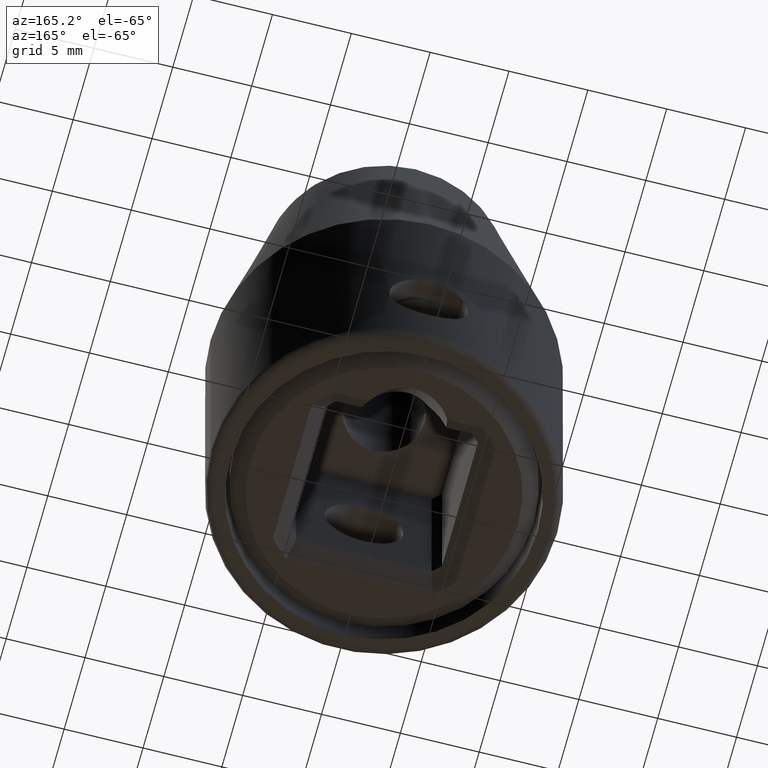
[diagram: clean part render]
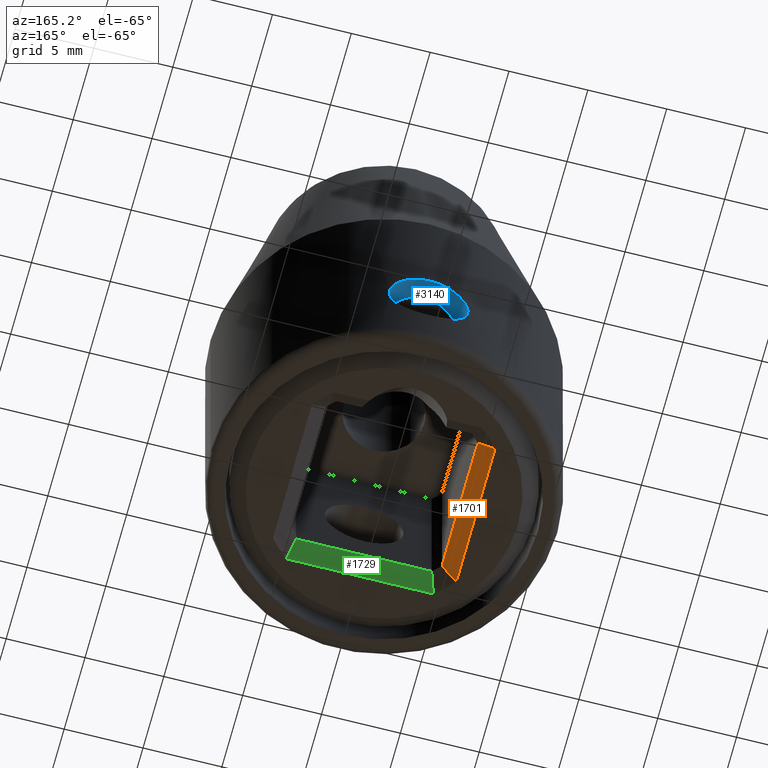
[diagram: same view with three faces highlighted in distinct colors, each labeled with its STEP entity id]
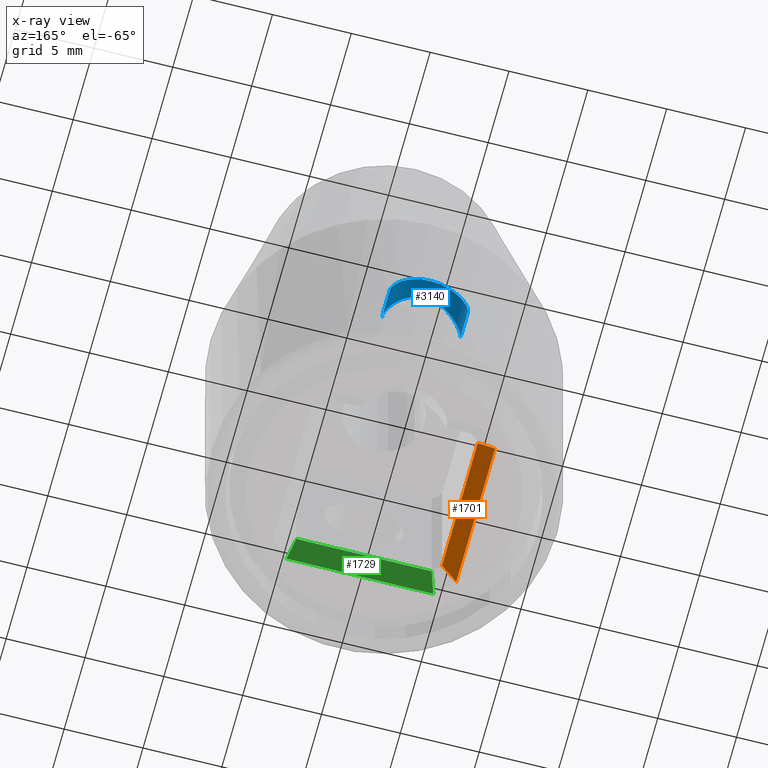
[diagram: x-ray of the same camera — body ghosted, the three highlighted faces saturated]
A machine part, auxiliary view with three faces highlighted in distinct colors.
The next image is the same camera in x-ray (body ghosted, the three faces saturated) — at least one of them is partly hidden behind the body in this view.
Their STEP definitions:

[orange] entity #1701 — the highlighted planar face has unit normal (0.7071, 0, -0.7071).
#70=DIRECTION('',(0.E0,-1.E0,0.E0));
#71=VECTOR('',#70,9.320374187767E0);
#72=CARTESIAN_POINT('',(-5.8125E0,4.660187093884E0,0.E0));
#73=LINE('',#72,#71);
#539=CARTESIAN_POINT('',(-4.812499999989E0,4.294455000342E0,1.000000000011E0));
#540=CARTESIAN_POINT('',(-4.969065537908E0,4.354154326175E0,8.434344620924E-1));
#541=CARTESIAN_POINT('',(-5.292278928942E0,4.474905876440E0,5.202210710578E-1));
#542=CARTESIAN_POINT('',(-5.635715214156E0,4.598068324618E0,1.767847858442E-1));
#543=CARTESIAN_POINT('',(-5.8125E0,4.660187093884E0,0.E0));
#545=CARTESIAN_POINT('',(-4.812499625574E0,-4.294454849542E0,1.000000379775E0));
#546=CARTESIAN_POINT('',(-4.969082591780E0,-4.354160828487E0,
8.434174135688E-1));
#547=CARTESIAN_POINT('',(-5.292314075015E0,-4.474918731365E0,
5.201859223112E-1));
#548=CARTESIAN_POINT('',(-5.635732733714E0,-4.598074480654E0,
1.767672662855E-1));
#549=CARTESIAN_POINT('',(-5.8125E0,-4.660187093884E0,0.E0));
#619=DIRECTION('',(4.359291289737E-8,-1.E0,4.421562363457E-8));
#620=VECTOR('',#619,8.588909849884E0);
#621=CARTESIAN_POINT('',(-4.812499999989E0,4.294455000342E0,1.000000000011E0));
#622=LINE('',#621,#620);
#1151=CARTESIAN_POINT('',(-5.8125E0,-4.660187093884E0,0.E0));
#1152=VERTEX_POINT('',#1151);
#1153=CARTESIAN_POINT('',(-4.8125E0,-4.294455000346E0,1.E0));
#1154=VERTEX_POINT('',#1153);
#1155=CARTESIAN_POINT('',(-5.8125E0,4.660187093884E0,0.E0));
#1156=VERTEX_POINT('',#1155);
#1157=CARTESIAN_POINT('',(-4.812499999989E0,4.294455000342E0,1.000000000011E0));
#1158=VERTEX_POINT('',#1157);
#1688=CARTESIAN_POINT('',(-5.3125E0,0.E0,5.E-1));
#1689=DIRECTION('',(7.071067811865E-1,0.E0,-7.071067811865E-1));
#1690=DIRECTION('',(7.071067811865E-1,0.E0,7.071067811865E-1));
#1691=AXIS2_PLACEMENT_3D('',#1688,#1689,#1690);
#1692=PLANE('',#1691);
#1693=ORIENTED_EDGE('',*,*,#1341,.T.);
#1695=ORIENTED_EDGE('',*,*,#1694,.F.);
#1697=ORIENTED_EDGE('',*,*,#1696,.F.);
#1698=ORIENTED_EDGE('',*,*,#1681,.T.);
#1699=EDGE_LOOP('',(#1693,#1695,#1697,#1698));
#1700=FACE_OUTER_BOUND('',#1699,.F.);
#1701=ADVANCED_FACE('',(#1700),#1692,.T.);
#544=B_SPLINE_CURVE_WITH_KNOTS('',3,(#539,#540,#541,#542,#543),.UNSPECIFIED.,
.F.,.F.,(4,1,4),(0.E0,5.E-1,1.E0),.UNSPECIFIED.);
#550=B_SPLINE_CURVE_WITH_KNOTS('',3,(#545,#546,#547,#548,#549),.UNSPECIFIED.,
.F.,.F.,(4,1,4),(0.E0,5.E-1,1.E0),.UNSPECIFIED.);
#1341=EDGE_CURVE('',#1156,#1152,#73,.T.);
#1681=EDGE_CURVE('',#1158,#1156,#544,.T.);
#1694=EDGE_CURVE('',#1154,#1152,#550,.T.);
#1696=EDGE_CURVE('',#1158,#1154,#622,.T.);

[blue] entity #3140 — the highlighted cylindrical surface (partial cylindrical patch) has radius 2.5 mm, axis along (0, -1, 0).
#2555=CARTESIAN_POINT('',(-2.5E0,-8.905756565278E0,5.5E0));
#2571=CARTESIAN_POINT('',(-8.366600265341E-1,-9.714036236292E0,
7.855843797878E0));
#2572=CARTESIAN_POINT('',(-9.376847958340E-1,-9.689328224581E0,
7.819965618586E0));
#2573=CARTESIAN_POINT('',(-1.133397866283E0,-9.632548132418E0,
7.735865600021E0));
#2574=CARTESIAN_POINT('',(-1.406088030253E0,-9.530926765064E0,
7.575040444306E0));
#2575=CARTESIAN_POINT('',(-1.652588087949E0,-9.420443379563E0,
7.384367683306E0));
#2576=CARTESIAN_POINT('',(-1.871252702804E0,-9.307723976618E0,
7.167272750353E0));
#2577=CARTESIAN_POINT('',(-2.063591217070E0,-9.197192953892E0,
6.923181029130E0));
#2578=CARTESIAN_POINT('',(-2.233878893250E0,-9.090368517965E0,
6.639582366719E0));
#2579=CARTESIAN_POINT('',(-2.377300432731E0,-8.993668832201E0,
6.306105419009E0));
#2580=CARTESIAN_POINT('',(-2.478457548605E0,-8.921589441983E0,
5.905466787454E0));
#2581=CARTESIAN_POINT('',(-2.5E0,-8.905756565278E0,5.636342810266E0));
#2582=CARTESIAN_POINT('',(-2.5E0,-8.905756565278E0,5.5E0));
#2595=CARTESIAN_POINT('',(2.5E0,-8.905756565278E0,5.5E0));
#2596=CARTESIAN_POINT('',(2.5E0,-8.905756565278E0,5.634140102606E0));
#2597=CARTESIAN_POINT('',(2.479155177628E0,-8.921073605874E0,5.899571358434E0));
#2598=CARTESIAN_POINT('',(2.380245411427E0,-8.991602544229E0,6.296997478134E0));
#2599=CARTESIAN_POINT('',(2.238682037612E0,-9.087217475872E0,6.630069219549E0));
#2600=CARTESIAN_POINT('',(2.069759839351E0,-9.193468106778E0,6.914227886264E0));
#2601=CARTESIAN_POINT('',(1.877636980040E0,-9.304251906071E0,7.160213488755E0));
#2602=CARTESIAN_POINT('',(1.657917572492E0,-9.417904721155E0,7.379820845062E0));
#2603=CARTESIAN_POINT('',(1.409974691436E0,-9.529371627076E0,7.572518300260E0));
#2604=CARTESIAN_POINT('',(1.135507472162E0,-9.631902781878E0,7.734905408500E0));
#2605=CARTESIAN_POINT('',(9.384121495530E-1,-9.689150332919E0,
7.819707304439E0));
#2606=CARTESIAN_POINT('',(8.366600265341E-1,-9.714036236292E0,
7.855843797878E0));
#2622=CARTESIAN_POINT('',(2.5E0,-8.905756565278E0,5.5E0));
#2676=CARTESIAN_POINT('',(8.366600265341E-1,-9.714036236292E0,
7.855843797878E0));
#2677=CARTESIAN_POINT('',(7.051203377959E-1,-9.725365615429E0,
7.902559118974E0));
#2678=CARTESIAN_POINT('',(4.355935715411E-1,-9.743301733085E0,
7.974038365051E0));
#2679=CARTESIAN_POINT('',(9.525434746290E-4,-9.753333692257E0,
8.012920358698E0));
#2680=CARTESIAN_POINT('',(-4.345830060582E-1,-9.743363299260E0,
7.974279425506E0));
#2681=CARTESIAN_POINT('',(-7.047268285984E-1,-9.725399507975E0,
7.902698870776E0));
#2682=CARTESIAN_POINT('',(-8.366600265341E-1,-9.714036236292E0,
7.855843797878E0));
#2711=DIRECTION('',(0.E0,-1.E0,0.E0));
#2712=VECTOR('',#2711,1.806386077536E0);
#2713=CARTESIAN_POINT('',(2.5E0,-8.905756565278E0,5.5E0));
#2714=LINE('',#2713,#2712);
#2718=DIRECTION('',(0.E0,-1.E0,0.E0));
#2719=VECTOR('',#2718,1.806386077536E0);
#2720=CARTESIAN_POINT('',(-2.5E0,-8.905756565278E0,5.5E0));
#2721=LINE('',#2720,#2719);
#2748=CARTESIAN_POINT('',(-2.5E0,-1.071214264281E1,5.5E0));
#2749=CARTESIAN_POINT('',(-2.5E0,-1.071214264281E1,5.659605194835E0));
#2750=CARTESIAN_POINT('',(-2.470942001866E0,-1.071900973391E1,
5.976003016144E0));
#2751=CARTESIAN_POINT('',(-2.324313615557E0,-1.075221441069E1,
6.465946565427E0));
#2752=CARTESIAN_POINT('',(-2.090201376670E0,-1.080076819921E1,
6.899967623545E0));
#2753=CARTESIAN_POINT('',(-1.780530971044E0,-1.085680709400E1,
7.277297931325E0));
#2754=CARTESIAN_POINT('',(-1.404945764429E0,-1.091241757742E1,
7.586762318282E0));
#2755=CARTESIAN_POINT('',(-9.704339778013E-1,-1.096054160446E1,
7.822764019066E0));
#2756=CARTESIAN_POINT('',(-4.742923435666E-1,-1.099350478573E1,
7.971772875600E0));
#2757=CARTESIAN_POINT('',(9.177716136556E-3,-1.100351173648E1,
8.015272759260E0));
#2758=CARTESIAN_POINT('',(5.006144335563E-1,-1.099241816871E1,
7.967003648329E0));
#2759=CARTESIAN_POINT('',(9.943062241594E-1,-1.095832789235E1,
7.812437013694E0));
#2760=CARTESIAN_POINT('',(1.424305758002E0,-1.090983661191E1,7.573269448362E0));
#2761=CARTESIAN_POINT('',(1.792674460430E0,-1.085473804715E1,7.264541267722E0));
#2762=CARTESIAN_POINT('',(2.097512079038E0,-1.079931656469E1,6.888551624255E0));
#2763=CARTESIAN_POINT('',(2.327594059022E0,-1.075148304373E1,6.457239951102E0));
#2764=CARTESIAN_POINT('',(2.471585731413E0,-1.071885683490E1,5.971091228530E0));
#2765=CARTESIAN_POINT('',(2.5E0,-1.071214264281E1,5.657857531494E0));
#2766=CARTESIAN_POINT('',(2.5E0,-1.071214264281E1,5.5E0));
#2946=VERTEX_POINT('',#2622);
#2947=VERTEX_POINT('',#2606);
#2948=VERTEX_POINT('',#2555);
#2950=VERTEX_POINT('',#2571);
#2951=CARTESIAN_POINT('',(2.5E0,-1.071214264281E1,5.5E0));
#2952=VERTEX_POINT('',#2951);
#2953=CARTESIAN_POINT('',(-2.5E0,-1.071214264281E1,5.5E0));
#2954=VERTEX_POINT('',#2953);
#3126=CARTESIAN_POINT('',(0.E0,0.E0,5.5E0));
#3127=DIRECTION('',(0.E0,1.E0,0.E0));
#3128=DIRECTION('',(1.E0,0.E0,0.E0));
#3129=AXIS2_PLACEMENT_3D('',#3126,#3127,#3128);
#3130=CYLINDRICAL_SURFACE('',#3129,2.5E0);
#3131=ORIENTED_EDGE('',*,*,#3067,.T.);
#3132=ORIENTED_EDGE('',*,*,#3098,.T.);
#3133=ORIENTED_EDGE('',*,*,#3060,.T.);
#3134=ORIENTED_EDGE('',*,*,#3119,.T.);
#3136=ORIENTED_EDGE('',*,*,#3135,.T.);
#3137=ORIENTED_EDGE('',*,*,#3115,.F.);
#3138=EDGE_LOOP('',(#3131,#3132,#3133,#3134,#3136,#3137));
#3139=FACE_OUTER_BOUND('',#3138,.F.);
#3140=ADVANCED_FACE('',(#3139),#3130,.F.);
#2583=B_SPLINE_CURVE_WITH_KNOTS('',3,(#2571,#2572,#2573,#2574,#2575,#2576,#2577,
#2578,#2579,#2580,#2581,#2582),.UNSPECIFIED.,.F.,.F.,(4,1,1,1,1,1,1,1,1,4),
(0.E0,1.111111111111E-1,2.222222222222E-1,3.333333333333E-1,4.444444444444E-1,
5.555555555556E-1,6.666666666667E-1,7.777777777778E-1,8.888888888889E-1,1.E0),
.UNSPECIFIED.);
#2607=B_SPLINE_CURVE_WITH_KNOTS('',3,(#2595,#2596,#2597,#2598,#2599,#2600,#2601,
#2602,#2603,#2604,#2605,#2606),.UNSPECIFIED.,.F.,.F.,(4,1,1,1,1,1,1,1,1,4),
(0.E0,1.111111111111E-1,2.222222222222E-1,3.333333333333E-1,4.444444444444E-1,
5.555555555556E-1,6.666666666667E-1,7.777777777778E-1,8.888888888889E-1,1.E0),
.UNSPECIFIED.);
#2683=B_SPLINE_CURVE_WITH_KNOTS('',3,(#2676,#2677,#2678,#2679,#2680,#2681,
#2682),.UNSPECIFIED.,.F.,.F.,(4,1,1,1,4),(0.E0,2.5E-1,5.E-1,7.5E-1,1.E0),
.UNSPECIFIED.);
#2767=B_SPLINE_CURVE_WITH_KNOTS('',3,(#2748,#2749,#2750,#2751,#2752,#2753,#2754,
#2755,#2756,#2757,#2758,#2759,#2760,#2761,#2762,#2763,#2764,#2765,#2766),
.UNSPECIFIED.,.F.,.F.,(4,1,1,1,1,1,1,1,1,1,1,1,1,1,1,1,4),(0.E0,6.25E-2,1.25E-1,
1.875E-1,2.5E-1,3.125E-1,3.75E-1,4.375E-1,5.E-1,5.625E-1,6.25E-1,6.875E-1,
7.5E-1,8.125E-1,8.75E-1,9.375E-1,1.E0),.UNSPECIFIED.);
#3060=EDGE_CURVE('',#2950,#2948,#2583,.T.);
#3067=EDGE_CURVE('',#2946,#2947,#2607,.T.);
#3098=EDGE_CURVE('',#2947,#2950,#2683,.T.);
#3115=EDGE_CURVE('',#2946,#2952,#2714,.T.);
#3119=EDGE_CURVE('',#2948,#2954,#2721,.T.);
#3135=EDGE_CURVE('',#2954,#2952,#2767,.T.);

[green] entity #1729 — the highlighted planar face has unit normal (0, 0.7071, -0.7071).
#61=DIRECTION('',(1.E0,0.E0,0.E0));
#62=VECTOR('',#61,9.320374187767E0);
#63=CARTESIAN_POINT('',(-4.660187093884E0,-5.8125E0,0.E0));
#64=LINE('',#63,#62);
#551=CARTESIAN_POINT('',(-4.294455000342E0,-4.812499999989E0,1.000000000011E0));
#552=CARTESIAN_POINT('',(-4.354154302187E0,-4.969065474998E0,
8.434345250026E-1));
#553=CARTESIAN_POINT('',(-4.474905830301E0,-5.292278802765E0,
5.202211972353E-1));
#554=CARTESIAN_POINT('',(-4.598068302399E0,-5.635715150921E0,
1.767848490790E-1));
#555=CARTESIAN_POINT('',(-4.660187093884E0,-5.8125E0,0.E0));
#557=CARTESIAN_POINT('',(4.294454849542E0,-4.812499625574E0,1.000000379775E0));
#558=CARTESIAN_POINT('',(4.354160837885E0,-4.969082616428E0,8.434173889204E-1));
#559=CARTESIAN_POINT('',(4.474918749443E0,-5.292314124451E0,5.201858728745E-1));
#560=CARTESIAN_POINT('',(4.598074489359E0,-5.635732758490E0,1.767672415099E-1));
#561=CARTESIAN_POINT('',(4.660187093884E0,-5.8125E0,0.E0));
#592=DIRECTION('',(1.E0,4.359291310419E-8,4.421562353116E-8));
#593=VECTOR('',#592,8.588909849884E0);
#594=CARTESIAN_POINT('',(-4.294455000342E0,-4.812499999989E0,1.000000000011E0));
#595=LINE('',#594,#593);
#1143=CARTESIAN_POINT('',(4.660187093884E0,-5.8125E0,0.E0));
#1144=VERTEX_POINT('',#1143);
#1145=CARTESIAN_POINT('',(4.294455000346E0,-4.8125E0,1.E0));
#1146=VERTEX_POINT('',#1145);
#1147=CARTESIAN_POINT('',(-4.660187093884E0,-5.8125E0,0.E0));
#1148=VERTEX_POINT('',#1147);
#1149=CARTESIAN_POINT('',(-4.294455000342E0,-4.812499999989E0,
1.000000000011E0));
#1150=VERTEX_POINT('',#1149);
#1716=CARTESIAN_POINT('',(0.E0,-5.3125E0,5.E-1));
#1717=DIRECTION('',(0.E0,7.071067811865E-1,-7.071067811865E-1));
#1718=DIRECTION('',(0.E0,7.071067811865E-1,7.071067811865E-1));
#1719=AXIS2_PLACEMENT_3D('',#1716,#1717,#1718);
#1720=PLANE('',#1719);
#1721=ORIENTED_EDGE('',*,*,#1337,.T.);
#1723=ORIENTED_EDGE('',*,*,#1722,.F.);
#1725=ORIENTED_EDGE('',*,*,#1724,.F.);
#1726=ORIENTED_EDGE('',*,*,#1708,.T.);
#1727=EDGE_LOOP('',(#1721,#1723,#1725,#1726));
#1728=FACE_OUTER_BOUND('',#1727,.F.);
#1729=ADVANCED_FACE('',(#1728),#1720,.T.);
#556=B_SPLINE_CURVE_WITH_KNOTS('',3,(#551,#552,#553,#554,#555),.UNSPECIFIED.,
.F.,.F.,(4,1,4),(0.E0,5.E-1,1.E0),.UNSPECIFIED.);
#562=B_SPLINE_CURVE_WITH_KNOTS('',3,(#557,#558,#559,#560,#561),.UNSPECIFIED.,
.F.,.F.,(4,1,4),(0.E0,5.E-1,1.E0),.UNSPECIFIED.);
#1337=EDGE_CURVE('',#1148,#1144,#64,.T.);
#1708=EDGE_CURVE('',#1150,#1148,#556,.T.);
#1722=EDGE_CURVE('',#1146,#1144,#562,.T.);
#1724=EDGE_CURVE('',#1150,#1146,#595,.T.);